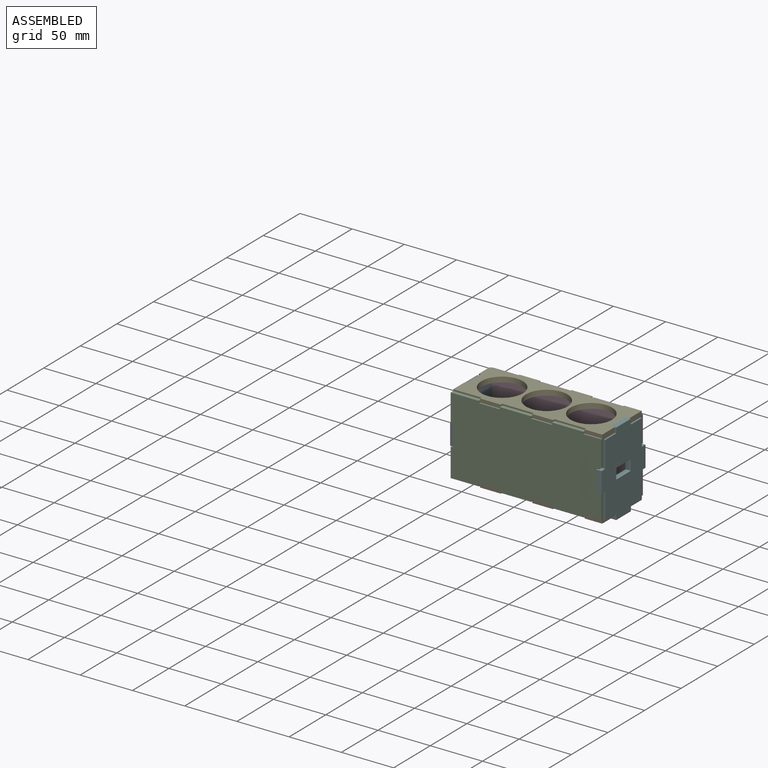
[diagram: assembled view]
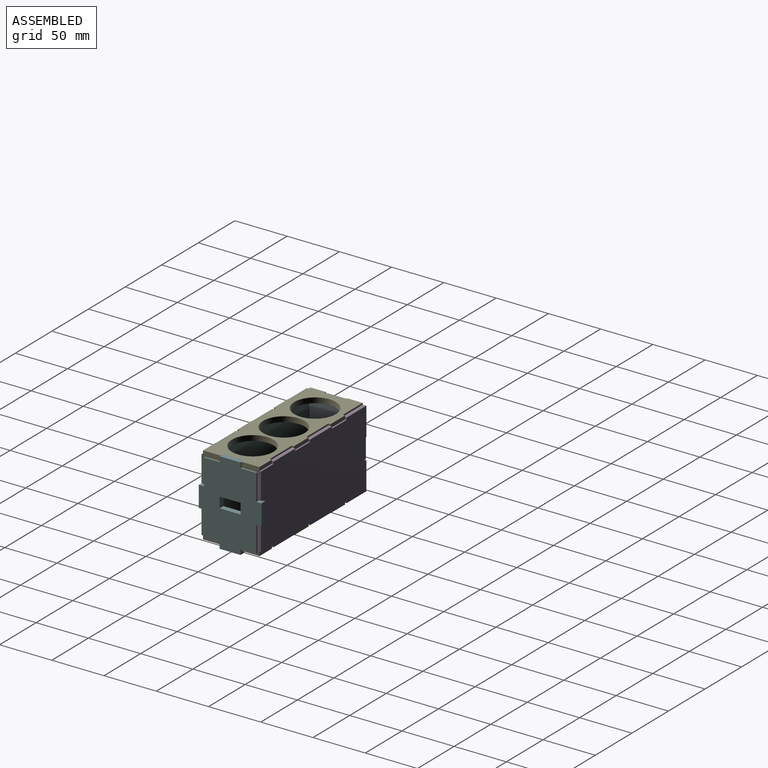
[diagram: assembled view, second angle]
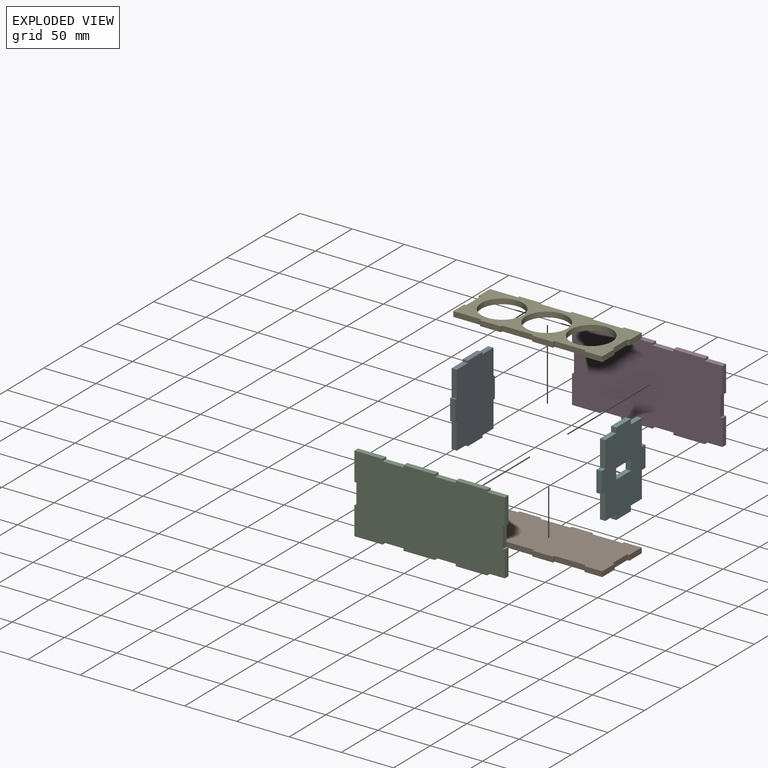
[diagram: exploded view]
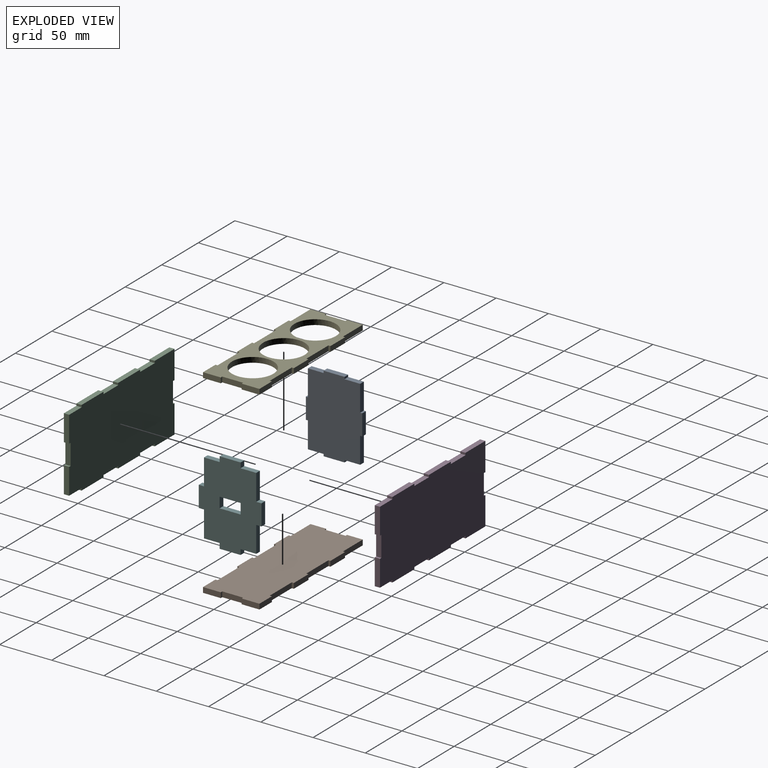
[diagram: exploded view, second angle]
ASSEMBLY  parts=6 mates=5
PART A: 22 faces, bbox 54x5x74 mm
  f0: plane 25x5mm, normal (-1,0,0), area 125mm2, adj f1,f19,f20,f21
  f1: plane 15x5mm, normal (0,0,-1), area 75mm2, adj f0,f2,f20,f21
  f2: plane 5x2mm, normal (-1,0,0), area 10mm2, adj f1,f3,f20,f21
  f3: plane 20x5mm, normal (0,0,-1), area 100mm2, adj f2,f4,f20,f21
  f4: plane 5x2mm, normal (1,0,0), area 10mm2, adj f3,f5,f20,f21
  f5: plane 15x5mm, normal (0,0,-1), area 75mm2, adj f4,f6,f20,f21
  f6: plane 25x5mm, normal (1,0,0), area 125mm2, adj f5,f7,f20,f21
  f7: plane 5x2mm, normal (0,0,-1), area 10mm2, adj f6,f8,f20,f21
  f8: plane 20x5mm, normal (1,0,0), area 100mm2, adj f7,f9,f20,f21
  f9: plane 5x2mm, normal (0,0,1), area 10mm2, adj f8,f10,f20,f21
  f10: plane 25x5mm, normal (1,0,0), area 125mm2, adj f9,f11,f20,f21
  f11: plane 15x5mm, normal (0,0,1), area 75mm2, adj f10,f12,f20,f21
  f12: plane 5x2mm, normal (1,0,0), area 10mm2, adj f11,f13,f20,f21
  f13: plane 20x5mm, normal (0,0,1), area 100mm2, adj f12,f14,f20,f21
  f14: plane 5x2mm, normal (-1,0,0), area 10mm2, adj f13,f15,f20,f21
  f15: plane 15x5mm, normal (0,0,1), area 75mm2, adj f14,f16,f20,f21
  f16: plane 25x5mm, normal (-1,0,0), area 125mm2, adj f15,f17,f20,f21
  f17: plane 5x2mm, normal (0,0,1), area 10mm2, adj f16,f18,f20,f21
  f18: plane 20x5mm, normal (-1,0,0), area 100mm2, adj f17,f19,f20,f21
  f19: plane 5x2mm, normal (0,0,-1), area 10mm2, adj f0,f18,f20,f21
  f20: plane 74x54mm, normal (0,-1,0), area 3660mm2, adj f0,f1,f2,f3,f4,f5,f6,f7
  f21: plane 74x54mm, normal (0,1,0), area 3660mm2, adj f0,f1,f2,f3,f4,f5,f6,f7
PART B: 34 faces, bbox 144x5x54 mm
  f0: plane 15x5mm, normal (-1,0,0), area 75mm2, adj f1,f31,f32,f33
  f1: plane 27x5mm, normal (0,0,-1), area 135mm2, adj f0,f2,f32,f33
  f2: plane 5x2mm, normal (-1,0,0), area 10mm2, adj f1,f3,f32,f33
  f3: plane 20x5mm, normal (0,0,-1), area 100mm2, adj f2,f4,f32,f33
  f4: plane 5x2mm, normal (1,0,0), area 10mm2, adj f3,f5,f32,f33
  f5: plane 30x5mm, normal (0,0,-1), area 150mm2, adj f4,f6,f32,f33
  f6: plane 5x2mm, normal (-1,0,0), area 10mm2, adj f5,f7,f32,f33
  f7: plane 20x5mm, normal (0,0,-1), area 100mm2, adj f6,f8,f32,f33
  f8: plane 5x2mm, normal (1,0,0), area 10mm2, adj f7,f9,f32,f33
  f9: plane 30x5mm, normal (0,0,-1), area 150mm2, adj f8,f10,f32,f33
  f10: plane 5x2mm, normal (-1,0,0), area 10mm2, adj f9,f11,f32,f33
  f11: plane 17x5mm, normal (0,0,-1), area 85mm2, adj f10,f12,f32,f33
  f12: plane 17x5mm, normal (1,0,0), area 85mm2, adj f11,f13,f32,f33
  f13: plane 5x2mm, normal (0,0,1), area 10mm2, adj f12,f14,f32,f33
  f14: plane 20x5mm, normal (1,0,0), area 100mm2, adj f13,f15,f32,f33
  f15: plane 5x2mm, normal (0,0,-1), area 10mm2, adj f14,f16,f32,f33
  f16: plane 17x5mm, normal (1,0,0), area 85mm2, adj f15,f17,f32,f33
  f17: plane 17x5mm, normal (0,0,1), area 85mm2, adj f16,f18,f32,f33
  f18: plane 5x2mm, normal (-1,0,0), area 10mm2, adj f17,f19,f32,f33
  f19: plane 30x5mm, normal (0,0,1), area 150mm2, adj f18,f20,f32,f33
  f20: plane 5x2mm, normal (1,0,0), area 10mm2, adj f19,f21,f32,f33
  f21: plane 20x5mm, normal (0,0,1), area 100mm2, adj f20,f22,f32,f33
  f22: plane 5x2mm, normal (-1,0,0), area 10mm2, adj f21,f23,f32,f33
  f23: plane 30x5mm, normal (0,0,1), area 150mm2, adj f22,f24,f32,f33
  f24: plane 5x2mm, normal (1,0,0), area 10mm2, adj f23,f25,f32,f33
  f25: plane 20x5mm, normal (0,0,1), area 100mm2, adj f24,f26,f32,f33
  f26: plane 5x2mm, normal (-1,0,0), area 10mm2, adj f25,f27,f32,f33
  f27: plane 27x5mm, normal (0,0,1), area 135mm2, adj f26,f28,f32,f33
  f28: plane 15x5mm, normal (-1,0,0), area 75mm2, adj f27,f29,f32,f33
  f29: plane 5x2mm, normal (0,0,-1), area 10mm2, adj f28,f30,f32,f33
  f30: plane 20x5mm, normal (-1,0,0), area 100mm2, adj f29,f31,f32,f33
  f31: plane 5x2mm, normal (0,0,1), area 10mm2, adj f0,f30,f32,f33
  f32: plane 144x54mm, normal (0,-1,0), area 7348mm2, adj f0,f1,f2,f3,f4,f5,f6,f7
  f33: plane 144x54mm, normal (0,1,0), area 7348mm2, adj f0,f1,f2,f3,f4,f5,f6,f7
PART C: 34 faces, bbox 144x5x74 mm
  f0: plane 27x5mm, normal (-1,0,0), area 135mm2, adj f1,f31,f32,f33
  f1: plane 27x5mm, normal (0,0,-1), area 135mm2, adj f0,f2,f32,f33
  f2: plane 5x2mm, normal (1,0,0), area 10mm2, adj f1,f3,f32,f33
  f3: plane 20x5mm, normal (0,0,-1), area 100mm2, adj f2,f4,f32,f33
  f4: plane 5x2mm, normal (-1,0,0), area 10mm2, adj f3,f5,f32,f33
  f5: plane 30x5mm, normal (0,0,-1), area 150mm2, adj f4,f6,f32,f33
  f6: plane 5x2mm, normal (1,0,0), area 10mm2, adj f5,f7,f32,f33
  f7: plane 20x5mm, normal (0,0,-1), area 100mm2, adj f6,f8,f32,f33
  f8: plane 5x2mm, normal (-1,0,0), area 10mm2, adj f7,f9,f32,f33
  f9: plane 30x5mm, normal (0,0,-1), area 150mm2, adj f8,f10,f32,f33
  f10: plane 5x2mm, normal (1,0,0), area 10mm2, adj f9,f11,f32,f33
  f11: plane 17x5mm, normal (0,0,-1), area 85mm2, adj f10,f12,f32,f33
  f12: plane 25x5mm, normal (1,0,0), area 125mm2, adj f11,f13,f32,f33
  f13: plane 5x2mm, normal (0,0,1), area 10mm2, adj f12,f14,f32,f33
  f14: plane 20x5mm, normal (1,0,0), area 100mm2, adj f13,f15,f32,f33
  f15: plane 5x2mm, normal (0,0,-1), area 10mm2, adj f14,f16,f32,f33
  f16: plane 25x5mm, normal (1,0,0), area 125mm2, adj f15,f17,f32,f33
  f17: plane 17x5mm, normal (0,0,1), area 85mm2, adj f16,f18,f32,f33
  f18: plane 5x2mm, normal (1,0,0), area 10mm2, adj f17,f19,f32,f33
  f19: plane 30x5mm, normal (0,0,1), area 150mm2, adj f18,f20,f32,f33
  f20: plane 5x2mm, normal (-1,0,0), area 10mm2, adj f19,f21,f32,f33
  f21: plane 20x5mm, normal (0,0,1), area 100mm2, adj f20,f22,f32,f33
  f22: plane 5x2mm, normal (1,0,0), area 10mm2, adj f21,f23,f32,f33
  f23: plane 30x5mm, normal (0,0,1), area 150mm2, adj f22,f24,f32,f33
  f24: plane 5x2mm, normal (-1,0,0), area 10mm2, adj f23,f25,f32,f33
  f25: plane 20x5mm, normal (0,0,1), area 100mm2, adj f24,f26,f32,f33
  f26: plane 5x2mm, normal (1,0,0), area 10mm2, adj f25,f27,f32,f33
  f27: plane 27x5mm, normal (0,0,1), area 135mm2, adj f26,f28,f32,f33
  f28: plane 27x5mm, normal (-1,0,0), area 135mm2, adj f27,f29,f32,f33
  f29: plane 5x2mm, normal (0,0,-1), area 10mm2, adj f28,f30,f32,f33
  f30: plane 20x5mm, normal (-1,0,0), area 100mm2, adj f29,f31,f32,f33
  f31: plane 5x2mm, normal (0,0,1), area 10mm2, adj f0,f30,f32,f33
  f32: plane 144x74mm, normal (0,-1,0), area 10348mm2, adj f0,f1,f2,f3,f4,f5,f6,f7
  f33: plane 144x74mm, normal (0,1,0), area 10348mm2, adj f0,f1,f2,f3,f4,f5,f6,f7
PART D: 34 faces, bbox 144x5x74 mm
  f0: plane 30x5mm, normal (0,0,-1), area 150mm2, adj f1,f31,f32,f33
  f1: plane 5x2mm, normal (1,0,0), area 10mm2, adj f0,f2,f32,f33
  f2: plane 20x5mm, normal (0,0,-1), area 100mm2, adj f1,f3,f32,f33
  f3: plane 5x2mm, normal (-1,0,0), area 10mm2, adj f2,f4,f32,f33
  f4: plane 30x5mm, normal (0,0,-1), area 150mm2, adj f3,f5,f32,f33
  f5: plane 5x2mm, normal (1,0,0), area 10mm2, adj f4,f6,f32,f33
  f6: plane 20x5mm, normal (0,0,-1), area 100mm2, adj f5,f7,f32,f33
  f7: plane 5x2mm, normal (-1,0,0), area 10mm2, adj f6,f8,f32,f33
  f8: plane 27x5mm, normal (0,0,-1), area 135mm2, adj f7,f9,f32,f33
  f9: plane 27x5mm, normal (1,0,0), area 135mm2, adj f8,f10,f32,f33
  f10: plane 5x2mm, normal (0,0,1), area 10mm2, adj f9,f11,f32,f33
  f11: plane 20x5mm, normal (1,0,0), area 100mm2, adj f10,f12,f32,f33
  f12: plane 5x2mm, normal (0,0,-1), area 10mm2, adj f11,f13,f32,f33
  f13: plane 27x5mm, normal (1,0,0), area 135mm2, adj f12,f14,f32,f33
  f14: plane 27x5mm, normal (0,0,1), area 135mm2, adj f13,f15,f32,f33
  f15: plane 5x2mm, normal (-1,0,0), area 10mm2, adj f14,f16,f32,f33
  f16: plane 20x5mm, normal (0,0,1), area 100mm2, adj f15,f17,f32,f33
  f17: plane 5x2mm, normal (1,0,0), area 10mm2, adj f16,f18,f32,f33
  f18: plane 30x5mm, normal (0,0,1), area 150mm2, adj f17,f19,f32,f33
  f19: plane 5x2mm, normal (-1,0,0), area 10mm2, adj f18,f20,f32,f33
  f20: plane 20x5mm, normal (0,0,1), area 100mm2, adj f19,f21,f32,f33
  f21: plane 5x2mm, normal (1,0,0), area 10mm2, adj f20,f22,f32,f33
  f22: plane 30x5mm, normal (0,0,1), area 150mm2, adj f21,f23,f32,f33
  f23: plane 5x2mm, normal (-1,0,0), area 10mm2, adj f22,f24,f32,f33
  f24: plane 17x5mm, normal (0,0,1), area 85mm2, adj f23,f25,f32,f33
  f25: plane 25x5mm, normal (-1,0,0), area 125mm2, adj f24,f26,f32,f33
  f26: plane 5x2mm, normal (0,0,-1), area 10mm2, adj f25,f27,f32,f33
  f27: plane 20x5mm, normal (-1,0,0), area 100mm2, adj f26,f28,f32,f33
  f28: plane 5x2mm, normal (0,0,1), area 10mm2, adj f27,f29,f32,f33
  f29: plane 25x5mm, normal (-1,0,0), area 125mm2, adj f28,f30,f32,f33
  f30: plane 17x5mm, normal (0,0,-1), area 85mm2, adj f29,f31,f32,f33
  f31: plane 5x2mm, normal (-1,0,0), area 10mm2, adj f0,f30,f32,f33
  f32: plane 144x74mm, normal (0,-1,0), area 10348mm2, adj f0,f1,f2,f3,f4,f5,f6,f7
  f33: plane 144x74mm, normal (0,1,0), area 10348mm2, adj f0,f1,f2,f3,f4,f5,f6,f7
PART E: 37 faces, bbox 144x5x54 mm
  f0: plane 15x5mm, normal (-1,0,0), area 75mm2, adj f1,f31,f32,f33
  f1: plane 27x5mm, normal (0,0,-1), area 135mm2, adj f0,f2,f32,f33
  f2: plane 5x2mm, normal (-1,0,0), area 10mm2, adj f1,f3,f32,f33
  f3: plane 20x5mm, normal (0,0,-1), area 100mm2, adj f2,f4,f32,f33
  f4: plane 5x2mm, normal (1,0,0), area 10mm2, adj f3,f5,f32,f33
  f5: plane 30x5mm, normal (0,0,-1), area 150mm2, adj f4,f6,f32,f33
  f6: plane 5x2mm, normal (-1,0,0), area 10mm2, adj f5,f7,f32,f33
  f7: plane 20x5mm, normal (0,0,-1), area 100mm2, adj f6,f8,f32,f33
  f8: plane 5x2mm, normal (1,0,0), area 10mm2, adj f7,f9,f32,f33
  f9: plane 30x5mm, normal (0,0,-1), area 150mm2, adj f8,f10,f32,f33
  f10: plane 5x2mm, normal (-1,0,0), area 10mm2, adj f9,f11,f32,f33
  f11: plane 17x5mm, normal (0,0,-1), area 85mm2, adj f10,f12,f32,f33
  f12: plane 17x5mm, normal (1,0,0), area 85mm2, adj f11,f13,f32,f33
  f13: plane 5x2mm, normal (0,0,1), area 10mm2, adj f12,f14,f32,f33
  f14: plane 20x5mm, normal (1,0,0), area 100mm2, adj f13,f15,f32,f33
  f15: plane 5x2mm, normal (0,0,-1), area 10mm2, adj f14,f16,f32,f33
  f16: plane 17x5mm, normal (1,0,0), area 85mm2, adj f15,f17,f32,f33
  f17: plane 17x5mm, normal (0,0,1), area 85mm2, adj f16,f18,f32,f33
  f18: plane 5x2mm, normal (-1,0,0), area 10mm2, adj f17,f19,f32,f33
  f19: plane 30x5mm, normal (0,0,1), area 150mm2, adj f18,f20,f32,f33
  f20: plane 5x2mm, normal (1,0,0), area 10mm2, adj f19,f21,f32,f33
  f21: plane 20x5mm, normal (0,0,1), area 100mm2, adj f20,f22,f32,f33
  f22: plane 5x2mm, normal (-1,0,0), area 10mm2, adj f21,f23,f32,f33
  f23: plane 30x5mm, normal (0,0,1), area 150mm2, adj f22,f24,f32,f33
  f24: plane 5x2mm, normal (1,0,0), area 10mm2, adj f23,f25,f32,f33
  f25: plane 20x5mm, normal (0,0,1), area 100mm2, adj f24,f26,f32,f33
  f26: plane 5x2mm, normal (-1,0,0), area 10mm2, adj f25,f27,f32,f33
  f27: plane 27x5mm, normal (0,0,1), area 135mm2, adj f26,f28,f32,f33
  f28: plane 15x5mm, normal (-1,0,0), area 75mm2, adj f27,f29,f32,f33
  f29: plane 5x2mm, normal (0,0,-1), area 10mm2, adj f28,f30,f32,f33
  f30: plane 20x5mm, normal (-1,0,0), area 100mm2, adj f29,f31,f32,f33
  f31: plane 5x2mm, normal (0,0,1), area 10mm2, adj f0,f30,f32,f33
  f32: plane 144x54mm, normal (0,-1,0), area 3640.7mm2, adj f0,f1,f2,f3,f4,f5,f6,f7
  f33: plane 144x54mm, normal (0,1,0), area 3640.7mm2, adj f0,f1,f2,f3,f4,f5,f6,f7
  f34: cylinder r=19.83mm len=39.67mm, axis (0,-1,0), area 623.1mm2, adj f32,f33
  f35: cylinder r=19.83mm len=39.67mm, axis (0,-1,0), area 623.1mm2, adj f32,f33
  f36: cylinder r=19.83mm len=39.67mm, axis (0,-1,0), area 623.1mm2, adj f32,f33
PART F: 26 faces, bbox 60x5x80 mm
  f0: plane 25x5mm, normal (-1,0,0), area 125mm2, adj f1,f19,f20,f21
  f1: plane 15x5mm, normal (0,0,-1), area 75mm2, adj f0,f2,f20,f21
  f2: plane 5x5mm, normal (-1,0,0), area 25mm2, adj f1,f3,f20,f21
  f3: plane 20x5mm, normal (0,0,-1), area 100mm2, adj f2,f4,f20,f21
  f4: plane 5x5mm, normal (1,0,0), area 25mm2, adj f3,f5,f20,f21
  f5: plane 15x5mm, normal (0,0,-1), area 75mm2, adj f4,f6,f20,f21
  f6: plane 25x5mm, normal (1,0,0), area 125mm2, adj f5,f7,f20,f21
  f7: plane 5x5mm, normal (0,0,-1), area 25mm2, adj f6,f8,f20,f21
  f8: plane 20x5mm, normal (1,0,0), area 100mm2, adj f7,f9,f20,f21
  f9: plane 5x5mm, normal (0,0,1), area 25mm2, adj f8,f10,f20,f21
  f10: plane 25x5mm, normal (1,0,0), area 125mm2, adj f9,f11,f20,f21
  f11: plane 15x5mm, normal (0,0,1), area 75mm2, adj f10,f12,f20,f21
  f12: plane 5x5mm, normal (1,0,0), area 25mm2, adj f11,f13,f20,f21
  f13: plane 20x5mm, normal (0,0,1), area 100mm2, adj f12,f14,f20,f21
  f14: plane 5x5mm, normal (-1,0,0), area 25mm2, adj f13,f15,f20,f21
  f15: plane 15x5mm, normal (0,0,1), area 75mm2, adj f14,f16,f20,f21
  f16: plane 25x5mm, normal (-1,0,0), area 125mm2, adj f15,f17,f20,f21
  f17: plane 5x5mm, normal (0,0,1), area 25mm2, adj f16,f18,f20,f21
  f18: plane 20x5mm, normal (-1,0,0), area 100mm2, adj f17,f19,f20,f21
  f19: plane 5x5mm, normal (0,0,-1), area 25mm2, adj f0,f18,f20,f21
  f20: plane 80x60mm, normal (0,-1,0), area 3700mm2, adj f0,f1,f2,f3,f4,f5,f6,f7
  f21: plane 80x60mm, normal (0,1,0), area 3700mm2, adj f0,f1,f2,f3,f4,f5,f6,f7
  f22: plane 10x5mm, normal (1,0,0), area 50mm2, adj f20,f21,f23,f25
  f23: plane 20x5mm, normal (0,0,1), area 100mm2, adj f20,f21,f22,f24
  f24: plane 10x5mm, normal (-1,0,0), area 50mm2, adj f20,f21,f23,f25
  f25: plane 20x5mm, normal (0,0,-1), area 100mm2, adj f20,f21,f22,f24
PLACE A rot(axis=(0,0,-1),90deg) t=(-206.14,80.75,47.68)mm
PLACE B rot(axis=(-1,0,0),90deg) t=(-209.64,30.75,44.18)mm
PLACE C t=(-209.64,32.25,45.68)mm
PLACE D rot(axis=(0,0,-1),180deg) t=(-65.64,79.25,47.68)mm
PLACE E rot(axis=(1,0,0),90deg) t=(-209.64,80.75,121.18)mm
PLACE F rot(axis=(0,0,1),90deg) t=(-69.14,30.75,46.18)mm
MATE fastened D.f15 <-> E.f2  axis (1,0,0) through (-182.64,81.75,118.68)mm
MATE fastened A.f19 <-> D.f10  axis (0,0,-1) through (-208.64,81.75,72.68)mm
MATE fastened F.f12 <-> E.f13  axis (0,1,0) through (-66.64,65.75,118.68)mm
MATE fastened E.f26 <-> C.f26  axis (-1,0,0) through (-182.64,29.75,118.68)mm
MATE fastened B.f26 <-> D.f7  axis (-1,0,0) through (-182.64,81.75,46.68)mm
